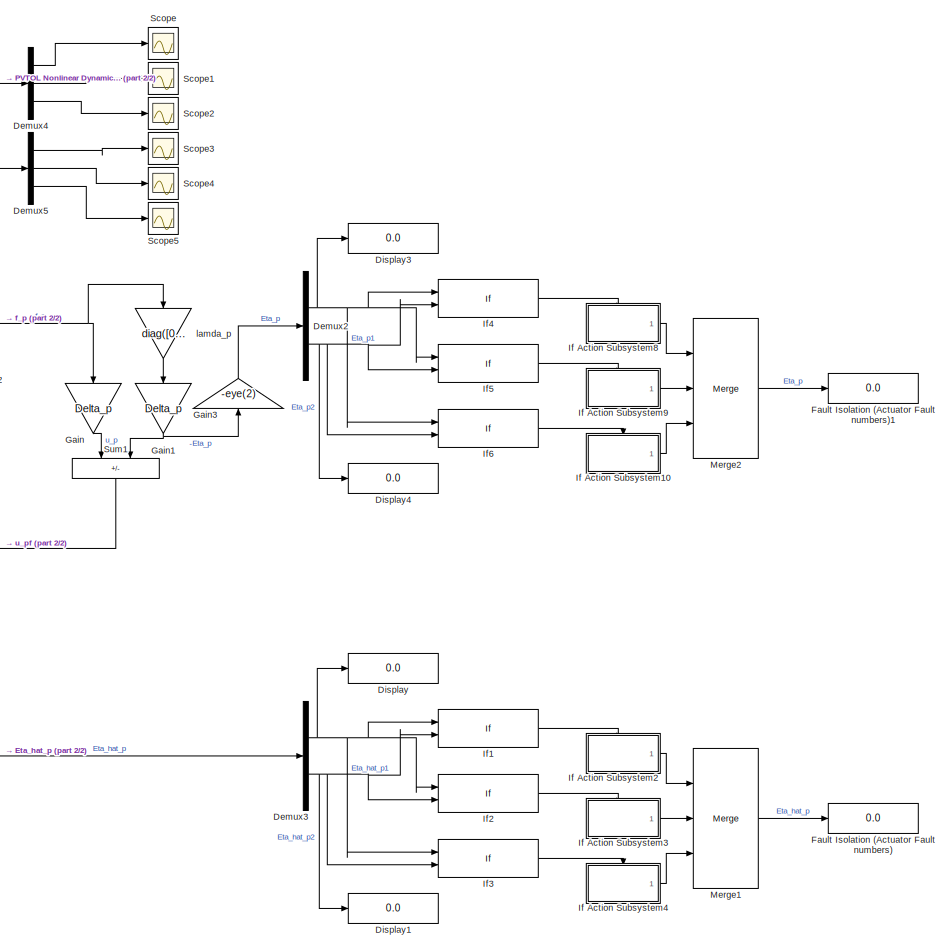
[diagram: root canvas - part 1/2, right side, full height]
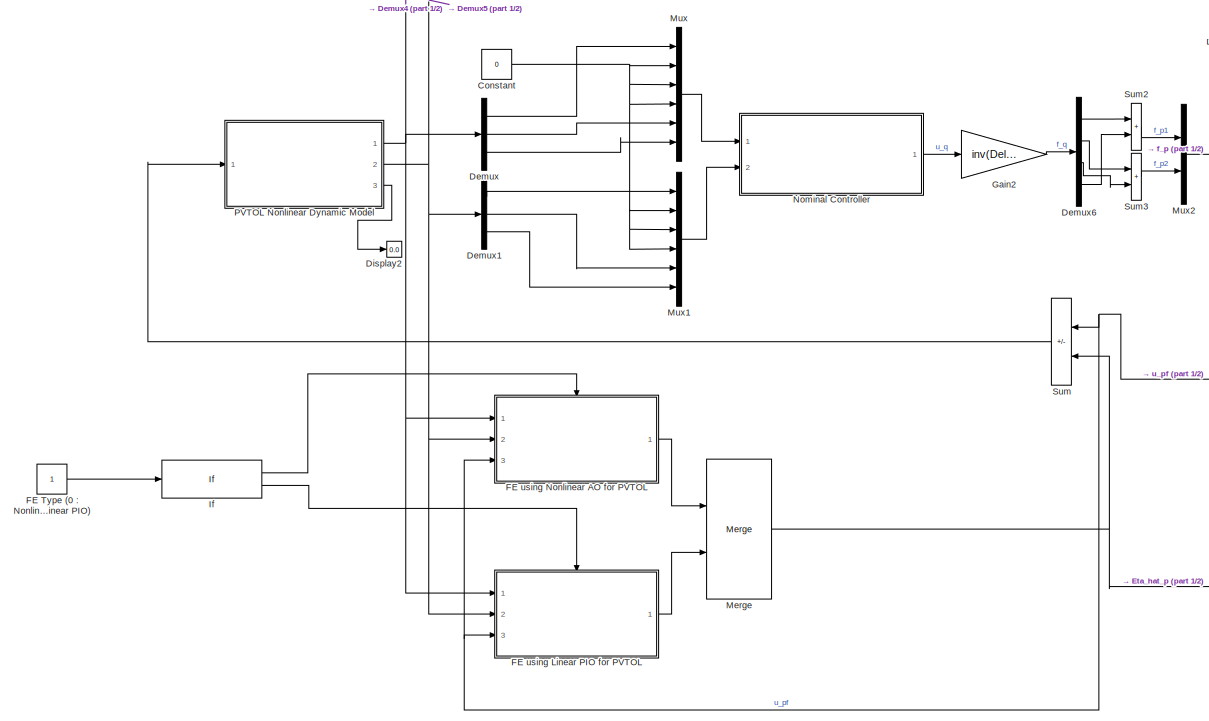
[diagram: root canvas - part 2/2, left side, full height]
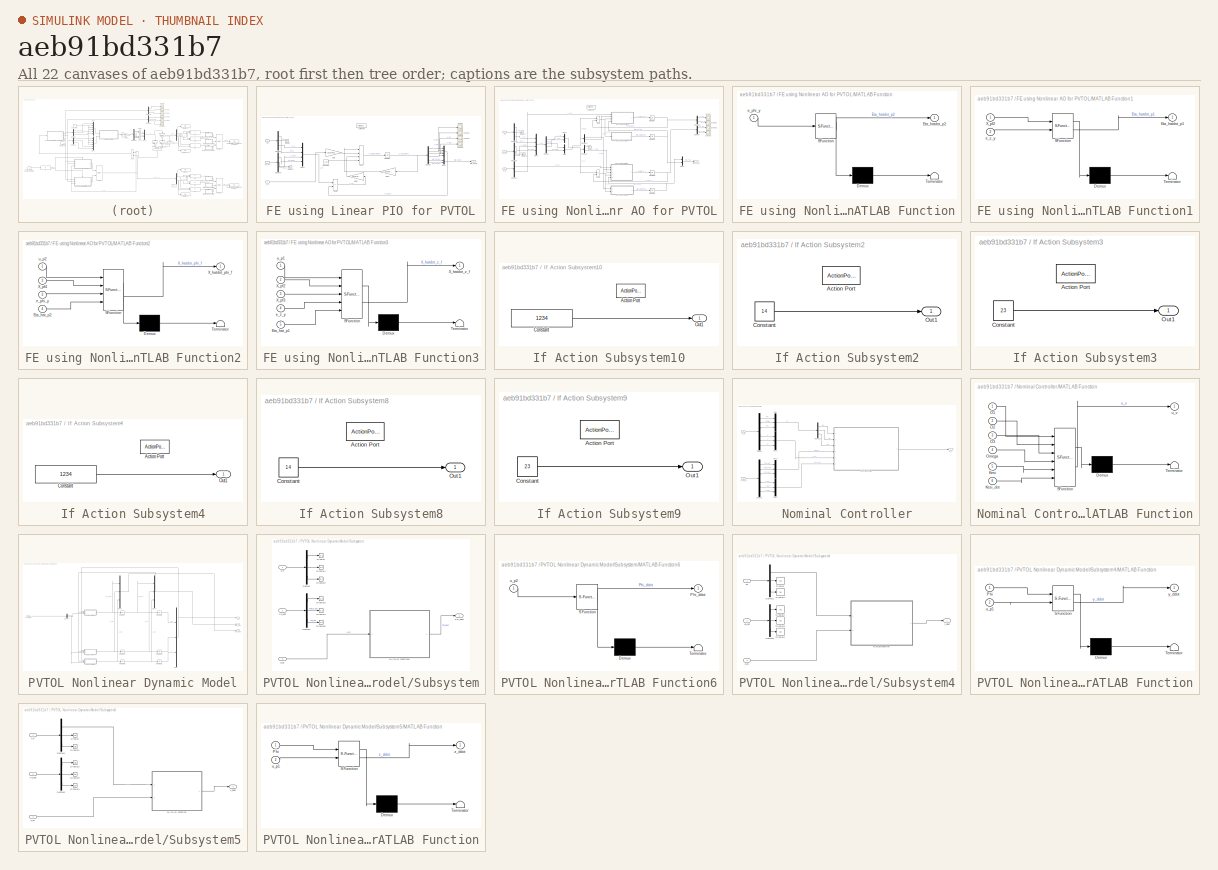
[diagram: thumbnail index - all 22 canvases of the model, root first then tree order]
MODEL slx_aeb91bd331b7
KIND model
CONFIG AbsTol = auto
CONFIG EnableMultiTasking = off
CONFIG FixedStep = auto
CONFIG MaxStep = auto
CONFIG MinStep = auto
CONFIG RelTol = 1e-3
CONFIG SampleTimeConstraint = Unconstrained
CONFIG SolverName = VariableStepAuto
CONFIG StartTime = 0.0
CONFIG StopTime = 10
BLOCK [Constant] Constant
  Value = 0
BLOCK [Demux] Demux
  Outputs = 3
  Ports = [1, 3]
BLOCK [Demux] Demux1
  Outputs = 3
  Ports = [1, 3]
BLOCK [Demux] Demux2
  Outputs = 2
  Ports = [1, 2]
BLOCK [Demux] Demux3
  Outputs = 2
  Ports = [1, 2]
BLOCK [Demux] Demux4
  Outputs = 3
  Ports = [1, 3]
BLOCK [Demux] Demux5
  Outputs = 3
  Ports = [1, 3]
BLOCK [Demux] Demux6
  Ports = [1, 4]
BLOCK [Display] Display
  Decimation = 1
  Ports = [1]
BLOCK [Display] Display1
  Decimation = 1
  Ports = [1]
BLOCK [Display] Display2
  Decimation = 1
  Ports = [1]
BLOCK [Display] Display3
  Decimation = 1
  Ports = [1]
BLOCK [Display] Display4
  Decimation = 1
  Ports = [1]
BLOCK [Constant] FE Type (0 : Nonlinear AO - 1 : Linear PIO)
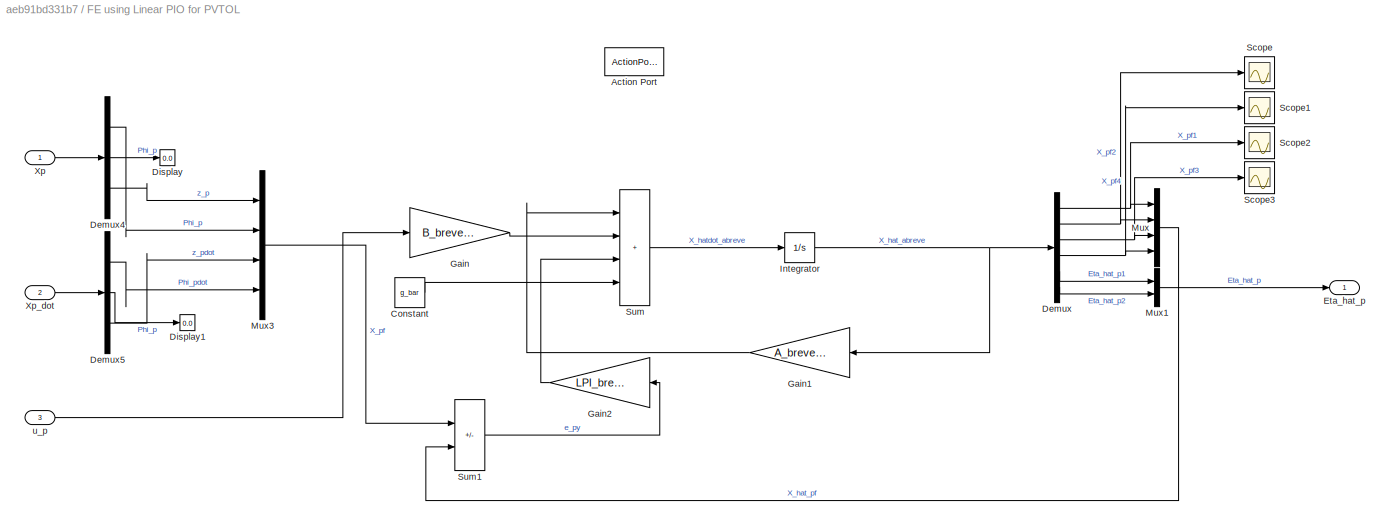
BLOCK [SubSystem] FE using Linear PIO for PVTOL
  Ports = [3, 1, 0, 0, 0, 0, 0, 1]
  RequestExecContextInheritance = off
BLOCK [ActionPort] FE using Linear PIO for PVTOL/Action Port
  ActionPortLabel = else
BLOCK [Constant] FE using Linear PIO for PVTOL/Constant
  Value = g_bar
BLOCK [Demux] FE using Linear PIO for PVTOL/Demux
  Outputs = 6
  Ports = [1, 6]
BLOCK [Demux] FE using Linear PIO for PVTOL/Demux4
  Outputs = 3
  Ports = [1, 3]
BLOCK [Demux] FE using Linear PIO for PVTOL/Demux5
  Outputs = 3
  Ports = [1, 3]
BLOCK [Display] FE using Linear PIO for PVTOL/Display
  Decimation = 1
  Ports = [1]
BLOCK [Display] FE using Linear PIO for PVTOL/Display1
  Decimation = 1
  Ports = [1]
BLOCK [Outport] FE using Linear PIO for PVTOL/Eta_hat_p
BLOCK [Gain] FE using Linear PIO for PVTOL/Gain
  Gain = B_brevebar
  Multiplication = Matrix(K*u)
BLOCK [Gain] FE using Linear PIO for PVTOL/Gain1
  Gain = A_brevebar
  Multiplication = Matrix(K*u)
  NameLocation = top
BLOCK [Gain] FE using Linear PIO for PVTOL/Gain2
  Gain = LPI_brevebar
  Multiplication = Matrix(K*u)
  NameLocation = top
BLOCK [Integrator] FE using Linear PIO for PVTOL/Integrator
  Ports = [1, 1]
BLOCK [Mux] FE using Linear PIO for PVTOL/Mux
  DisplayOption = bar
  Ports = [4, 1]
BLOCK [Mux] FE using Linear PIO for PVTOL/Mux1
  DisplayOption = bar
  Inputs = 2
  Ports = [2, 1]
BLOCK [Mux] FE using Linear PIO for PVTOL/Mux3
  DisplayOption = bar
  Ports = [4, 1]
BLOCK [Scope] FE using Linear PIO for PVTOL/Scope
  Floating = off
  NumInputPorts = 1
  Ports = [1]
  ScopeSpecificationString = Simulink.scopes.TimeScopeBlockCfg('CurrentConfiguration', extmgr.ConfigurationSet(extmgr.Configuration('Core','General UI',true),extmgr.Configuration('Core','Source UI',true),extmgr.Configuration('Sources','WiredSimulink',true,'DataLoggingVariableName','ScopeData5'),extmgr.Configuration('Visuals','Time Domain',true,'SerializedDisplays',{struct('MinYLimReal','-1.00000','MaxYLimReal','1.00000','YLab...<+1364ch>
BLOCK [Scope] FE using Linear PIO for PVTOL/Scope1
  Floating = off
  NumInputPorts = 1
  Ports = [1]
  ScopeSpecificationString = Simulink.scopes.TimeScopeBlockCfg('CurrentConfiguration', extmgr.ConfigurationSet(extmgr.Configuration('Core','General UI',true),extmgr.Configuration('Core','Source UI',true),extmgr.Configuration('Sources','WiredSimulink',true,'DataLoggingVariableName','ScopeData6'),extmgr.Configuration('Visuals','Time Domain',true,'SerializedDisplays',{struct('MinYLimReal','-1.00000','MaxYLimReal','1.00000','YLab...<+1393ch>
BLOCK [Scope] FE using Linear PIO for PVTOL/Scope2
  Floating = off
  NumInputPorts = 1
  Ports = [1]
  ScopeSpecificationString = Simulink.scopes.TimeScopeBlockCfg('CurrentConfiguration', extmgr.ConfigurationSet(extmgr.Configuration('Core','General UI',true),extmgr.Configuration('Core','Source UI',true),extmgr.Configuration('Sources','WiredSimulink',true,'DataLoggingVariableName','ScopeData7'),extmgr.Configuration('Visuals','Time Domain',true,'SerializedDisplays',{struct('MinYLimReal','-0.16533','MaxYLimReal','0.01837','YLab...<+1393ch>
BLOCK [Scope] FE using Linear PIO for PVTOL/Scope3
  Floating = off
  NumInputPorts = 1
  Ports = [1]
  ScopeSpecificationString = Simulink.scopes.TimeScopeBlockCfg('CurrentConfiguration', extmgr.ConfigurationSet(extmgr.Configuration('Core','General UI',true),extmgr.Configuration('Core','Source UI',true),extmgr.Configuration('Sources','WiredSimulink',true,'DataLoggingVariableName','ScopeData8'),extmgr.Configuration('Visuals','Time Domain',true,'SerializedDisplays',{struct('MinYLimReal','-1.03063','MaxYLimReal','0.9046','YLabe...<+1362ch>
BLOCK [Sum] FE using Linear PIO for PVTOL/Sum
  IconShape = rectangular
  Inputs = ++++
  Ports = [4, 1]
BLOCK [Sum] FE using Linear PIO for PVTOL/Sum1
  IconShape = rectangular
  Inputs = +-
  Ports = [2, 1]
BLOCK [Inport] FE using Linear PIO for PVTOL/Xp
BLOCK [Inport] FE using Linear PIO for PVTOL/Xp_dot
  Port = 2
BLOCK [Inport] FE using Linear PIO for PVTOL/u_p
  Port = 3
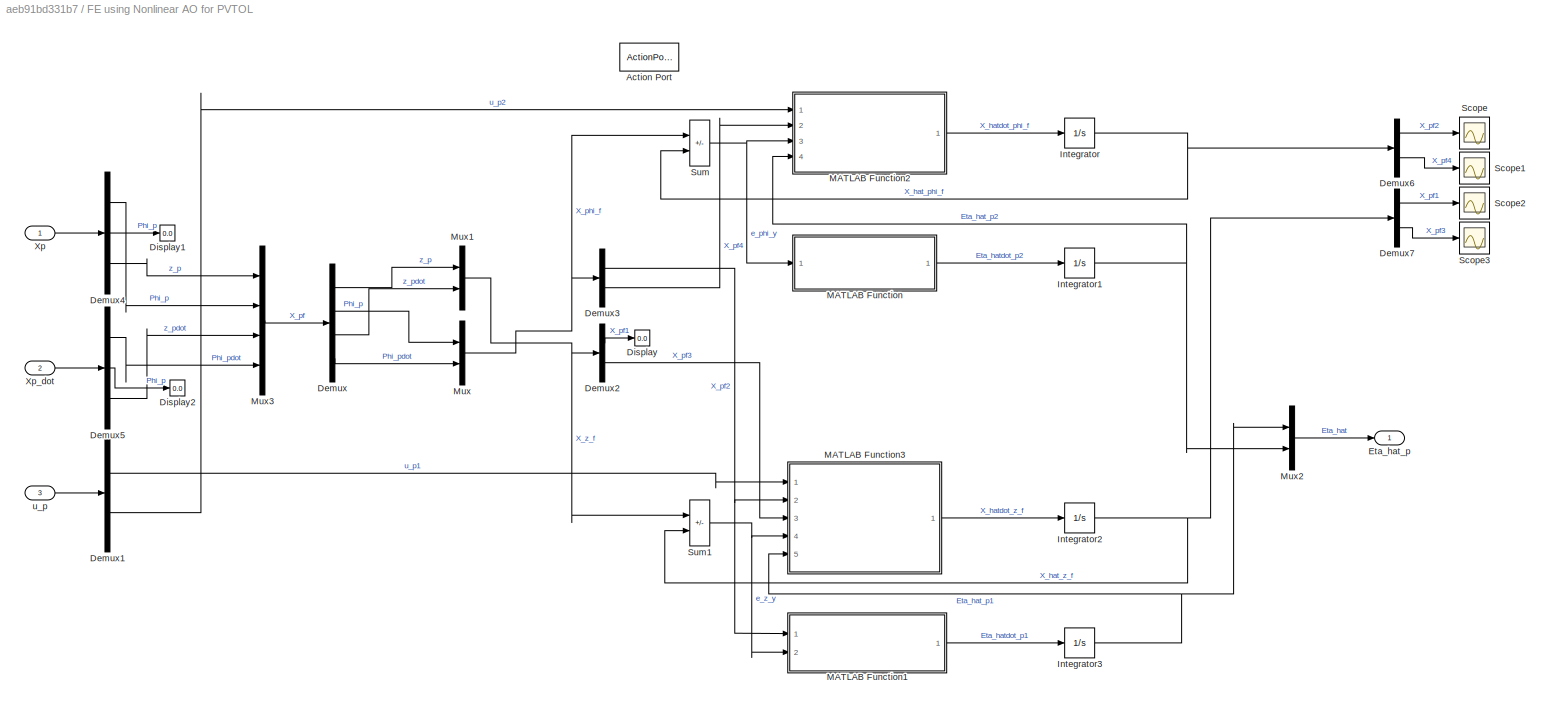
BLOCK [SubSystem] FE using Nonlinear AO for PVTOL
  Ports = [3, 1, 0, 0, 0, 0, 0, 1]
  RequestExecContextInheritance = off
BLOCK [ActionPort] FE using Nonlinear AO for PVTOL/Action Port
  ActionPortLabel = if(u1 == 0)
BLOCK [Demux] FE using Nonlinear AO for PVTOL/Demux
  Ports = [1, 4]
BLOCK [Demux] FE using Nonlinear AO for PVTOL/Demux1
  Outputs = 2
  Ports = [1, 2]
BLOCK [Demux] FE using Nonlinear AO for PVTOL/Demux2
  Outputs = 2
  Ports = [1, 2]
BLOCK [Demux] FE using Nonlinear AO for PVTOL/Demux3
  Outputs = 2
  Ports = [1, 2]
BLOCK [Demux] FE using Nonlinear AO for PVTOL/Demux4
  Outputs = 3
  Ports = [1, 3]
BLOCK [Demux] FE using Nonlinear AO for PVTOL/Demux5
  Outputs = 3
  Ports = [1, 3]
BLOCK [Demux] FE using Nonlinear AO for PVTOL/Demux6
  Outputs = 2
  Ports = [1, 2]
BLOCK [Demux] FE using Nonlinear AO for PVTOL/Demux7
  Outputs = 2
  Ports = [1, 2]
BLOCK [Display] FE using Nonlinear AO for PVTOL/Display
  Decimation = 1
  Ports = [1]
BLOCK [Display] FE using Nonlinear AO for PVTOL/Display1
  Decimation = 1
  Ports = [1]
BLOCK [Display] FE using Nonlinear AO for PVTOL/Display2
  Decimation = 1
  Ports = [1]
BLOCK [Outport] FE using Nonlinear AO for PVTOL/Eta_hat_p
BLOCK [Integrator] FE using Nonlinear AO for PVTOL/Integrator
  Ports = [1, 1]
BLOCK [Integrator] FE using Nonlinear AO for PVTOL/Integrator1
  Ports = [1, 1]
BLOCK [Integrator] FE using Nonlinear AO for PVTOL/Integrator2
  Ports = [1, 1]
BLOCK [Integrator] FE using Nonlinear AO for PVTOL/Integrator3
  Ports = [1, 1]
BLOCK [SubSystem] FE using Nonlinear AO for PVTOL/MATLAB Function
  ErrorFcn = Stateflow.Translate.translate
  PermitHierarchicalResolution = ExplicitOnly
  Ports = [1, 1]
  RequestExecContextInheritance = off
  SFBlockType = MATLAB Function
  TreatAsAtomicUnit = on
BLOCK [Demux] FE using Nonlinear AO for PVTOL/MATLAB Function/ Demux 
  Outputs = 1
  Ports = [1, 1]
BLOCK [S-Function] FE using Nonlinear AO for PVTOL/MATLAB Function/ SFunction 
  EnableBusSupport = on
  FunctionName = sf_sfun
  Parameters = Jx,Lf1,l
  PortCounts = [1 2]
  Ports = [1, 2]
  SFcnIsStateOwnerBlock = off
  SFunctionDeploymentMode = off
  Tag = Stateflow S-Function 8
BLOCK [Terminator] FE using Nonlinear AO for PVTOL/MATLAB Function/ Terminator 
BLOCK [Outport] FE using Nonlinear AO for PVTOL/MATLAB Function/Eta_hatdot_p2
BLOCK [Inport] FE using Nonlinear AO for PVTOL/MATLAB Function/e_phi_y
BLOCK [SubSystem] FE using Nonlinear AO for PVTOL/MATLAB Function1
  ErrorFcn = Stateflow.Translate.translate
  PermitHierarchicalResolution = ExplicitOnly
  Ports = [2, 1]
  RequestExecContextInheritance = off
  SFBlockType = MATLAB Function
  TreatAsAtomicUnit = on
BLOCK [Demux] FE using Nonlinear AO for PVTOL/MATLAB Function1/ Demux 
  Outputs = 1
  Ports = [1, 1]
BLOCK [S-Function] FE using Nonlinear AO for PVTOL/MATLAB Function1/ SFunction 
  EnableBusSupport = on
  FunctionName = sf_sfun
  Parameters = Lf2,m
  PortCounts = [2 2]
  Ports = [2, 2]
  SFcnIsStateOwnerBlock = off
  SFunctionDeploymentMode = off
  Tag = Stateflow S-Function 9
BLOCK [Terminator] FE using Nonlinear AO for PVTOL/MATLAB Function1/ Terminator 
BLOCK [Outport] FE using Nonlinear AO for PVTOL/MATLAB Function1/Eta_hatdot_p1
BLOCK [Inport] FE using Nonlinear AO for PVTOL/MATLAB Function1/X_pf2
BLOCK [Inport] FE using Nonlinear AO for PVTOL/MATLAB Function1/e_z_y
  Port = 2
BLOCK [SubSystem] FE using Nonlinear AO for PVTOL/MATLAB Function2
  ErrorFcn = Stateflow.Translate.translate
  PermitHierarchicalResolution = ExplicitOnly
  Ports = [4, 1]
  RequestExecContextInheritance = off
  SFBlockType = MATLAB Function
  TreatAsAtomicUnit = on
BLOCK [Demux] FE using Nonlinear AO for PVTOL/MATLAB Function2/ Demux 
  Outputs = 1
  Ports = [1, 1]
BLOCK [S-Function] FE using Nonlinear AO for PVTOL/MATLAB Function2/ SFunction 
  EnableBusSupport = on
  FunctionName = sf_sfun
  Parameters = Jx,Ly1,l
  PortCounts = [4 2]
  Ports = [4, 2]
  SFcnIsStateOwnerBlock = off
  SFunctionDeploymentMode = off
  Tag = Stateflow S-Function 10
BLOCK [Terminator] FE using Nonlinear AO for PVTOL/MATLAB Function2/ Terminator 
BLOCK [Inport] FE using Nonlinear AO for PVTOL/MATLAB Function2/Eta_hat_p2
  Port = 4
BLOCK [Outport] FE using Nonlinear AO for PVTOL/MATLAB Function2/X_hatdot_phi_f
BLOCK [Inport] FE using Nonlinear AO for PVTOL/MATLAB Function2/X_pf4
  Port = 2
BLOCK [Inport] FE using Nonlinear AO for PVTOL/MATLAB Function2/e_phi_y
  Port = 3
BLOCK [Inport] FE using Nonlinear AO for PVTOL/MATLAB Function2/u_p2
BLOCK [SubSystem] FE using Nonlinear AO for PVTOL/MATLAB Function3
  ErrorFcn = Stateflow.Translate.translate
  PermitHierarchicalResolution = ExplicitOnly
  Ports = [5, 1]
  RequestExecContextInheritance = off
  SFBlockType = MATLAB Function
  TreatAsAtomicUnit = on
BLOCK [Demux] FE using Nonlinear AO for PVTOL/MATLAB Function3/ Demux 
  Outputs = 1
  Ports = [1, 1]
BLOCK [S-Function] FE using Nonlinear AO for PVTOL/MATLAB Function3/ SFunction 
  EnableBusSupport = on
  FunctionName = sf_sfun
  Parameters = Ly2,g,m
  PortCounts = [5 2]
  Ports = [5, 2]
  SFcnIsStateOwnerBlock = off
  SFunctionDeploymentMode = off
  Tag = Stateflow S-Function 13
BLOCK [Terminator] FE using Nonlinear AO for PVTOL/MATLAB Function3/ Terminator 
BLOCK [Inport] FE using Nonlinear AO for PVTOL/MATLAB Function3/Eta_hat_p1
  Port = 5
BLOCK [Outport] FE using Nonlinear AO for PVTOL/MATLAB Function3/X_hatdot_z_f
BLOCK [Inport] FE using Nonlinear AO for PVTOL/MATLAB Function3/X_pf2
  Port = 2
BLOCK [Inport] FE using Nonlinear AO for PVTOL/MATLAB Function3/X_pf3
  Port = 3
BLOCK [Inport] FE using Nonlinear AO for PVTOL/MATLAB Function3/e_z_y
  Port = 4
BLOCK [Inport] FE using Nonlinear AO for PVTOL/MATLAB Function3/u_p1
BLOCK [Mux] FE using Nonlinear AO for PVTOL/Mux
  DisplayOption = bar
  Inputs = 2
  Ports = [2, 1]
BLOCK [Mux] FE using Nonlinear AO for PVTOL/Mux1
  DisplayOption = bar
  Inputs = 2
  Ports = [2, 1]
BLOCK [Mux] FE using Nonlinear AO for PVTOL/Mux2
  DisplayOption = bar
  Inputs = 2
  Ports = [2, 1]
BLOCK [Mux] FE using Nonlinear AO for PVTOL/Mux3
  DisplayOption = bar
  Ports = [4, 1]
BLOCK [Scope] FE using Nonlinear AO for PVTOL/Scope
  Floating = off
  NumInputPorts = 1
  Ports = [1]
  ScopeSpecificationString = Simulink.scopes.TimeScopeBlockCfg('CurrentConfiguration', extmgr.ConfigurationSet(extmgr.Configuration('Core','General UI',true),extmgr.Configuration('Core','Source UI',true),extmgr.Configuration('Sources','WiredSimulink',true,'DataLoggingVariableName','ScopeData1'),extmgr.Configuration('Visuals','Time Domain',true,'SerializedDisplays',{struct('MinYLimReal','-1.00000','MaxYLimReal','1.00000','YLab...<+1364ch>
BLOCK [Scope] FE using Nonlinear AO for PVTOL/Scope1
  Floating = off
  NumInputPorts = 1
  Ports = [1]
  ScopeSpecificationString = Simulink.scopes.TimeScopeBlockCfg('CurrentConfiguration', extmgr.ConfigurationSet(extmgr.Configuration('Core','General UI',true),extmgr.Configuration('Core','Source UI',true),extmgr.Configuration('Sources','WiredSimulink',true,'DataLoggingVariableName','ScopeData2'),extmgr.Configuration('Visuals','Time Domain',true,'SerializedDisplays',{struct('MinYLimReal','-1.00000','MaxYLimReal','1.00000','YLab...<+1393ch>
BLOCK [Scope] FE using Nonlinear AO for PVTOL/Scope2
  Floating = off
  NumInputPorts = 1
  Ports = [1]
  ScopeSpecificationString = Simulink.scopes.TimeScopeBlockCfg('CurrentConfiguration', extmgr.ConfigurationSet(extmgr.Configuration('Core','General UI',true),extmgr.Configuration('Core','Source UI',true),extmgr.Configuration('Sources','WiredSimulink',true,'DataLoggingVariableName','ScopeData3'),extmgr.Configuration('Visuals','Time Domain',true,'SerializedDisplays',{struct('MinYLimReal','-10005168995660824703561607634066728250...<+2087ch>
BLOCK [Scope] FE using Nonlinear AO for PVTOL/Scope3
  Floating = off
  NumInputPorts = 1
  Ports = [1]
  ScopeSpecificationString = Simulink.scopes.TimeScopeBlockCfg('CurrentConfiguration', extmgr.ConfigurationSet(extmgr.Configuration('Core','General UI',true),extmgr.Configuration('Core','Source UI',true),extmgr.Configuration('Sources','WiredSimulink',true,'DataLoggingVariableName','ScopeData4'),extmgr.Configuration('Visuals','Time Domain',true,'SerializedDisplays',{struct('MinYLimReal','-23915333908916219312646091552041973709...<+2072ch>
BLOCK [Sum] FE using Nonlinear AO for PVTOL/Sum
  IconShape = rectangular
  Inputs = |+-
  Ports = [2, 1]
BLOCK [Sum] FE using Nonlinear AO for PVTOL/Sum1
  IconShape = rectangular
  Inputs = |+-
  Ports = [2, 1]
BLOCK [Inport] FE using Nonlinear AO for PVTOL/Xp
BLOCK [Inport] FE using Nonlinear AO for PVTOL/Xp_dot
  Port = 2
BLOCK [Inport] FE using Nonlinear AO for PVTOL/u_p
  Port = 3
BLOCK [Display] Fault Isolation (Actuator Fault numbers)
  Decimation = 1
  Ports = [1]
BLOCK [Display] Fault Isolation (Actuator Fault numbers)1
  Decimation = 1
  Ports = [1]
BLOCK [Gain] Gain
  Gain = Delta_p
  Multiplication = Matrix(K*u)
  NameLocation = left
BLOCK [Gain] Gain1
  Gain = Delta_p
  Multiplication = Matrix(K*u)
  NameLocation = left
BLOCK [Gain] Gain2
  Gain = inv(Delta_q)
  Multiplication = Matrix(K*u)
BLOCK [Gain] Gain3
  Gain = -eye(2)
  Multiplication = Matrix(K*u)
  NameLocation = right
BLOCK [If] If
  IfExpression = u1 == 0
  Ports = [1, 2]
BLOCK [SubSystem] If Action Subsystem10
  Ports = [0, 1, 0, 0, 0, 0, 0, 1]
  RequestExecContextInheritance = off
  TreatAsAtomicUnit = on
BLOCK [ActionPort] If Action Subsystem10/Action Port
  ActionPortLabel = if(u1 >0)
BLOCK [Constant] If Action Subsystem10/Constant
  Value = 1234
BLOCK [Outport] If Action Subsystem10/Out1
BLOCK [SubSystem] If Action Subsystem2
  Ports = [0, 1, 0, 0, 0, 0, 0, 1]
  RequestExecContextInheritance = off
  TreatAsAtomicUnit = on
BLOCK [ActionPort] If Action Subsystem2/Action Port
  ActionPortLabel = if(u1 < 0 & u2<0)
BLOCK [Constant] If Action Subsystem2/Constant
  Value = 14
BLOCK [Outport] If Action Subsystem2/Out1
BLOCK [SubSystem] If Action Subsystem3
  Ports = [0, 1, 0, 0, 0, 0, 0, 1]
  RequestExecContextInheritance = off
  TreatAsAtomicUnit = on
BLOCK [ActionPort] If Action Subsystem3/Action Port
  ActionPortLabel = if(u1 <0 & u2>0)
BLOCK [Constant] If Action Subsystem3/Constant
  Value = 23
BLOCK [Outport] If Action Subsystem3/Out1
BLOCK [SubSystem] If Action Subsystem4
  Ports = [0, 1, 0, 0, 0, 0, 0, 1]
  RequestExecContextInheritance = off
  TreatAsAtomicUnit = on
BLOCK [ActionPort] If Action Subsystem4/Action Port
  ActionPortLabel = if(u1 >0 )
BLOCK [Constant] If Action Subsystem4/Constant
  Value = 1234
BLOCK [Outport] If Action Subsystem4/Out1
BLOCK [SubSystem] If Action Subsystem8
  Ports = [0, 1, 0, 0, 0, 0, 0, 1]
  RequestExecContextInheritance = off
  TreatAsAtomicUnit = on
BLOCK [ActionPort] If Action Subsystem8/Action Port
  ActionPortLabel = if(u1 < 0 & u2<0)
BLOCK [Constant] If Action Subsystem8/Constant
  Value = 14
BLOCK [Outport] If Action Subsystem8/Out1
BLOCK [SubSystem] If Action Subsystem9
  Ports = [0, 1, 0, 0, 0, 0, 0, 1]
  RequestExecContextInheritance = off
  TreatAsAtomicUnit = on
BLOCK [ActionPort] If Action Subsystem9/Action Port
  ActionPortLabel = if(u1 <0 & u2>0)
BLOCK [Constant] If Action Subsystem9/Constant
  Value = 23
BLOCK [Outport] If Action Subsystem9/Out1
BLOCK [If] If1
  IfExpression = u1 < 0 & u2<0
  NumInputs = 2
  Ports = [2, 1]
  ShowElse = off
BLOCK [If] If2
  IfExpression = u1 <0 & u2>0
  NumInputs = 2
  Ports = [2, 1]
  ShowElse = off
BLOCK [If] If3
  IfExpression = u1 >0
  NumInputs = 2
  Ports = [2, 1]
  ShowElse = off
BLOCK [If] If4
  IfExpression = u1 < 0 & u2<0
  NumInputs = 2
  Ports = [2, 1]
  ShowElse = off
BLOCK [If] If5
  IfExpression = u1 <0 & u2>0
  NumInputs = 2
  Ports = [2, 1]
  ShowElse = off
BLOCK [If] If6
  IfExpression = u1 >0
  NumInputs = 2
  Ports = [2, 1]
  ShowElse = off
BLOCK [Merge] Merge
  Ports = [2, 1]
BLOCK [Merge] Merge1
  Inputs = 3
  Ports = [3, 1]
BLOCK [Merge] Merge2
  Inputs = 3
  Ports = [3, 1]
BLOCK [Mux] Mux
  DisplayOption = bar
  Inputs = 6
  Ports = [6, 1]
BLOCK [Mux] Mux1
  DisplayOption = bar
  Inputs = 6
  Ports = [6, 1]
BLOCK [Mux] Mux2
  DisplayOption = bar
  Inputs = 2
  Ports = [2, 1]
BLOCK [SubSystem] Nominal Controller
  Ports = [2, 1]
  RequestExecContextInheritance = off
BLOCK [Demux] Nominal Controller/Demux
  Outputs = 6
  Ports = [1, 6]
BLOCK [Demux] Nominal Controller/Demux1
  Outputs = 6
  Ports = [1, 6]
BLOCK [Demux] Nominal Controller/Demux2
  Outputs = 3
  Ports = [1, 3]
BLOCK [SubSystem] Nominal Controller/MATLAB Function
  ErrorFcn = Stateflow.Translate.translate
  PermitHierarchicalResolution = ExplicitOnly
  Ports = [6, 1]
  RequestExecContextInheritance = off
  SFBlockType = MATLAB Function
  TreatAsAtomicUnit = on
BLOCK [Demux] Nominal Controller/MATLAB Function/ Demux 
  Outputs = 1
  Ports = [1, 1]
BLOCK [S-Function] Nominal Controller/MATLAB Function/ SFunction 
  EnableBusSupport = on
  FunctionName = sf_sfun
  Parameters = K_D_kesi,K_D_omega,K_P_kesi,K_P_omega,O_d,Omega_d,kesi_d,kesi_dot_d
  PortCounts = [6 2]
  Ports = [6, 2]
  SFcnIsStateOwnerBlock = off
  SFunctionDeploymentMode = off
  Tag = Stateflow S-Function 16
BLOCK [Terminator] Nominal Controller/MATLAB Function/ Terminator 
BLOCK [Inport] Nominal Controller/MATLAB Function/Kesi
  Port = 5
BLOCK [Inport] Nominal Controller/MATLAB Function/Kesi_dot
  Port = 6
BLOCK [Inport] Nominal Controller/MATLAB Function/O1
BLOCK [Inport] Nominal Controller/MATLAB Function/O2
  Port = 2
BLOCK [Inport] Nominal Controller/MATLAB Function/O3
  Port = 3
BLOCK [Inport] Nominal Controller/MATLAB Function/Omega
  Port = 4
BLOCK [Outport] Nominal Controller/MATLAB Function/u_v
BLOCK [Mux] Nominal Controller/Mux
  DisplayOption = bar
  Inputs = 3
  Ports = [3, 1]
BLOCK [Mux] Nominal Controller/Mux1
  DisplayOption = bar
  Inputs = 3
  Ports = [3, 1]
BLOCK [Mux] Nominal Controller/Mux2
  DisplayOption = bar
  Inputs = 3
  Ports = [3, 1]
BLOCK [Mux] Nominal Controller/Mux3
  DisplayOption = bar
  Inputs = 3
  Ports = [3, 1]
BLOCK [Inport] Nominal Controller/X_dot_q
  Port = 2
BLOCK [Inport] Nominal Controller/X_q
BLOCK [Outport] Nominal Controller/u_v
BLOCK [SubSystem] PVTOL Nonlinear Dynamic Model
  Ports = [1, 3]
  RequestExecContextInheritance = off
BLOCK [Demux] PVTOL Nonlinear Dynamic Model/Demux
  Outputs = 2
  Ports = [1, 2]
BLOCK [Integrator] PVTOL Nonlinear Dynamic Model/Integrator
  InitialCondition = Phi_dot_init
  Ports = [1, 1]
BLOCK [Integrator] PVTOL Nonlinear Dynamic Model/Integrator10
  InitialCondition = y_init
  Ports = [1, 1]
BLOCK [Integrator] PVTOL Nonlinear Dynamic Model/Integrator11
  InitialCondition = z_init
  Ports = [1, 1]
BLOCK [Integrator] PVTOL Nonlinear Dynamic Model/Integrator4
  InitialCondition = y_dot_init
  Ports = [1, 1]
BLOCK [Integrator] PVTOL Nonlinear Dynamic Model/Integrator5
  InitialCondition = z_dot_init
  Ports = [1, 1]
BLOCK [Integrator] PVTOL Nonlinear Dynamic Model/Integrator6
  InitialCondition = Phi_init
  Ports = [1, 1]
BLOCK [Mux] PVTOL Nonlinear Dynamic Model/Mux1
  DisplayOption = bar
  Inputs = 3
  Ports = [3, 1]
BLOCK [Mux] PVTOL Nonlinear Dynamic Model/Mux2
  DisplayOption = bar
  Inputs = 3
  Ports = [3, 1]
BLOCK [Mux] PVTOL Nonlinear Dynamic Model/Mux3
  DisplayOption = bar
  Inputs = 3
  Ports = [3, 1]
BLOCK [SubSystem] PVTOL Nonlinear Dynamic Model/Subsystem
  Ports = [3, 1]
  RequestExecContextInheritance = off
BLOCK [Demux] PVTOL Nonlinear Dynamic Model/Subsystem/Demux
  Outputs = 3
  Ports = [1, 3]
BLOCK [Demux] PVTOL Nonlinear Dynamic Model/Subsystem/Demux1
  Outputs = 3
  Ports = [1, 3]
BLOCK [Display] PVTOL Nonlinear Dynamic Model/Subsystem/Display
  Decimation = 1
  Ports = [1]
BLOCK [Display] PVTOL Nonlinear Dynamic Model/Subsystem/Display1
  Decimation = 1
  Ports = [1]
BLOCK [Display] PVTOL Nonlinear Dynamic Model/Subsystem/Display2
  Decimation = 1
  Ports = [1]
BLOCK [Display] PVTOL Nonlinear Dynamic Model/Subsystem/Display3
  Decimation = 1
  Ports = [1]
BLOCK [Display] PVTOL Nonlinear Dynamic Model/Subsystem/Display4
  Decimation = 1
  Ports = [1]
BLOCK [Display] PVTOL Nonlinear Dynamic Model/Subsystem/Display5
  Decimation = 1
  Ports = [1]
BLOCK [SubSystem] PVTOL Nonlinear Dynamic Model/Subsystem/MATLAB Function6
  ErrorFcn = Stateflow.Translate.translate
  PermitHierarchicalResolution = ExplicitOnly
  Ports = [1, 1]
  RequestExecContextInheritance = off
  SFBlockType = MATLAB Function
  TreatAsAtomicUnit = on
BLOCK [Demux] PVTOL Nonlinear Dynamic Model/Subsystem/MATLAB Function6/ Demux 
  Outputs = 1
  Ports = [1, 1]
BLOCK [S-Function] PVTOL Nonlinear Dynamic Model/Subsystem/MATLAB Function6/ SFunction 
  EnableBusSupport = on
  FunctionName = sf_sfun
  Parameters = Jx,l
  PortCounts = [1 2]
  Ports = [1, 2]
  SFcnIsStateOwnerBlock = off
  SFunctionDeploymentMode = off
  Tag = Stateflow S-Function 7
BLOCK [Terminator] PVTOL Nonlinear Dynamic Model/Subsystem/MATLAB Function6/ Terminator 
BLOCK [Outport] PVTOL Nonlinear Dynamic Model/Subsystem/MATLAB Function6/Phi_ddot
BLOCK [Inport] PVTOL Nonlinear Dynamic Model/Subsystem/MATLAB Function6/u_p2
BLOCK [Outport] PVTOL Nonlinear Dynamic Model/Subsystem/Phi_ddot
BLOCK [Inport] PVTOL Nonlinear Dynamic Model/Subsystem/Xp
BLOCK [Inport] PVTOL Nonlinear Dynamic Model/Subsystem/Xp_dot
  Port = 2
BLOCK [Inport] PVTOL Nonlinear Dynamic Model/Subsystem/u_p2
  Port = 3
BLOCK [SubSystem] PVTOL Nonlinear Dynamic Model/Subsystem4
  Ports = [3, 1]
  RequestExecContextInheritance = off
BLOCK [Demux] PVTOL Nonlinear Dynamic Model/Subsystem4/Demux1
  Outputs = 3
  Ports = [1, 3]
BLOCK [Demux] PVTOL Nonlinear Dynamic Model/Subsystem4/Demux2
  Outputs = 3
  Ports = [1, 3]
BLOCK [Display] PVTOL Nonlinear Dynamic Model/Subsystem4/Display
  Decimation = 1
  Ports = [1]
BLOCK [Display] PVTOL Nonlinear Dynamic Model/Subsystem4/Display1
  Decimation = 1
  Ports = [1]
BLOCK [Display] PVTOL Nonlinear Dynamic Model/Subsystem4/Display2
  Decimation = 1
  Ports = [1]
BLOCK [Display] PVTOL Nonlinear Dynamic Model/Subsystem4/Display3
  Decimation = 1
  Ports = [1]
BLOCK [Display] PVTOL Nonlinear Dynamic Model/Subsystem4/Display4
  Decimation = 1
  Ports = [1]
BLOCK [SubSystem] PVTOL Nonlinear Dynamic Model/Subsystem4/MATLAB Function
  ErrorFcn = Stateflow.Translate.translate
  PermitHierarchicalResolution = ExplicitOnly
  Ports = [2, 1]
  RequestExecContextInheritance = off
  SFBlockType = MATLAB Function
  TreatAsAtomicUnit = on
BLOCK [Demux] PVTOL Nonlinear Dynamic Model/Subsystem4/MATLAB Function/ Demux 
  Outputs = 1
  Ports = [1, 1]
BLOCK [S-Function] PVTOL Nonlinear Dynamic Model/Subsystem4/MATLAB Function/ SFunction 
  EnableBusSupport = on
  FunctionName = sf_sfun
  Parameters = m
  PortCounts = [2 2]
  Ports = [2, 2]
  SFcnIsStateOwnerBlock = off
  SFunctionDeploymentMode = off
  Tag = Stateflow S-Function 11
BLOCK [Terminator] PVTOL Nonlinear Dynamic Model/Subsystem4/MATLAB Function/ Terminator 
BLOCK [Inport] PVTOL Nonlinear Dynamic Model/Subsystem4/MATLAB Function/Phi
BLOCK [Inport] PVTOL Nonlinear Dynamic Model/Subsystem4/MATLAB Function/u_p1
  Port = 2
BLOCK [Outport] PVTOL Nonlinear Dynamic Model/Subsystem4/MATLAB Function/y_ddot
BLOCK [Inport] PVTOL Nonlinear Dynamic Model/Subsystem4/Xp
BLOCK [Inport] PVTOL Nonlinear Dynamic Model/Subsystem4/Xp_dot
  Port = 2
BLOCK [Inport] PVTOL Nonlinear Dynamic Model/Subsystem4/u_p1
  Port = 3
BLOCK [Outport] PVTOL Nonlinear Dynamic Model/Subsystem4/y_ddot
BLOCK [SubSystem] PVTOL Nonlinear Dynamic Model/Subsystem5
  Ports = [3, 1]
  RequestExecContextInheritance = off
BLOCK [Demux] PVTOL Nonlinear Dynamic Model/Subsystem5/Demux1
  Outputs = 3
  Ports = [1, 3]
BLOCK [Demux] PVTOL Nonlinear Dynamic Model/Subsystem5/Demux2
  Outputs = 3
  Ports = [1, 3]
BLOCK [Display] PVTOL Nonlinear Dynamic Model/Subsystem5/Display
  Decimation = 1
  Ports = [1]
BLOCK [Display] PVTOL Nonlinear Dynamic Model/Subsystem5/Display1
  Decimation = 1
  Ports = [1]
BLOCK [Display] PVTOL Nonlinear Dynamic Model/Subsystem5/Display2
  Decimation = 1
  Ports = [1]
BLOCK [Display] PVTOL Nonlinear Dynamic Model/Subsystem5/Display3
  Decimation = 1
  Ports = [1]
BLOCK [Display] PVTOL Nonlinear Dynamic Model/Subsystem5/Display4
  Decimation = 1
  Ports = [1]
BLOCK [SubSystem] PVTOL Nonlinear Dynamic Model/Subsystem5/MATLAB Function
  ErrorFcn = Stateflow.Translate.translate
  PermitHierarchicalResolution = ExplicitOnly
  Ports = [2, 1]
  RequestExecContextInheritance = off
  SFBlockType = MATLAB Function
  TreatAsAtomicUnit = on
BLOCK [Demux] PVTOL Nonlinear Dynamic Model/Subsystem5/MATLAB Function/ Demux 
  Outputs = 1
  Ports = [1, 1]
BLOCK [S-Function] PVTOL Nonlinear Dynamic Model/Subsystem5/MATLAB Function/ SFunction 
  EnableBusSupport = on
  FunctionName = sf_sfun
  Parameters = g,m
  PortCounts = [2 2]
  Ports = [2, 2]
  SFcnIsStateOwnerBlock = off
  SFunctionDeploymentMode = off
  Tag = Stateflow S-Function 12
BLOCK [Terminator] PVTOL Nonlinear Dynamic Model/Subsystem5/MATLAB Function/ Terminator 
BLOCK [Inport] PVTOL Nonlinear Dynamic Model/Subsystem5/MATLAB Function/Phi
BLOCK [Inport] PVTOL Nonlinear Dynamic Model/Subsystem5/MATLAB Function/u_p1
  Port = 2
BLOCK [Outport] PVTOL Nonlinear Dynamic Model/Subsystem5/MATLAB Function/z_ddot
BLOCK [Inport] PVTOL Nonlinear Dynamic Model/Subsystem5/Xp
BLOCK [Inport] PVTOL Nonlinear Dynamic Model/Subsystem5/Xp_dot
  Port = 2
BLOCK [Inport] PVTOL Nonlinear Dynamic Model/Subsystem5/u_p1
  Port = 3
BLOCK [Outport] PVTOL Nonlinear Dynamic Model/Subsystem5/z_ddot
BLOCK [Outport] PVTOL Nonlinear Dynamic Model/Xp
BLOCK [Outport] PVTOL Nonlinear Dynamic Model/Xp_ddot
  Port = 3
BLOCK [Outport] PVTOL Nonlinear Dynamic Model/Xp_dot
  Port = 2
BLOCK [Inport] PVTOL Nonlinear Dynamic Model/u_p or f_p
BLOCK [Scope] Scope
  Floating = off
  NumInputPorts = 1
  Ports = [1]
  ScopeSpecificationString = Simulink.scopes.TimeScopeBlockCfg('CurrentConfiguration', extmgr.ConfigurationSet(extmgr.Configuration('Core','General UI',true),extmgr.Configuration('Core','Source UI',true),extmgr.Configuration('Sources','WiredSimulink',true),extmgr.Configuration('Visuals','Time Domain',true,'SerializedDisplays',{struct('MinYLimReal','-1.00000','MaxYLimReal','1.00000','YLabelReal','','MinYLimMag','0.00000','MaxY...<+1328ch>
BLOCK [Scope] Scope1
  Floating = off
  NumInputPorts = 1
  Ports = [1]
  ScopeSpecificationString = Simulink.scopes.TimeScopeBlockCfg('CurrentConfiguration', extmgr.ConfigurationSet(extmgr.Configuration('Core','General UI',true),extmgr.Configuration('Core','Source UI',true),extmgr.Configuration('Sources','WiredSimulink',true,'DataLoggingVariableName','ScopeData1'),extmgr.Configuration('Visuals','Time Domain',true,'SerializedDisplays',{struct('MinYLimReal','-1.00000','MaxYLimReal','1.00000','YLab...<+1396ch>
BLOCK [Scope] Scope2
  Floating = off
  NumInputPorts = 1
  Ports = [1]
  ScopeSpecificationString = Simulink.scopes.TimeScopeBlockCfg('CurrentConfiguration', extmgr.ConfigurationSet(extmgr.Configuration('Core','General UI',true),extmgr.Configuration('Core','Source UI',true),extmgr.Configuration('Sources','WiredSimulink',true,'DataLoggingVariableName','ScopeData2'),extmgr.Configuration('Visuals','Time Domain',true,'SerializedDisplays',{struct('MinYLimReal','-0.16533','MaxYLimReal','0.01837','YLab...<+1396ch>
BLOCK [Scope] Scope3
  Floating = off
  NumInputPorts = 1
  Ports = [1]
  ScopeSpecificationString = Simulink.scopes.TimeScopeBlockCfg('CurrentConfiguration', extmgr.ConfigurationSet(extmgr.Configuration('Core','General UI',true),extmgr.Configuration('Core','Source UI',true),extmgr.Configuration('Sources','WiredSimulink',true,'DataLoggingVariableName','ScopeData3'),extmgr.Configuration('Visuals','Time Domain',true,'SerializedDisplays',{struct('MinYLimReal','-1.00000','MaxYLimReal','1.00000','YLab...<+1367ch>
BLOCK [Scope] Scope4
  Floating = off
  NumInputPorts = 1
  Ports = [1]
  ScopeSpecificationString = Simulink.scopes.TimeScopeBlockCfg('CurrentConfiguration', extmgr.ConfigurationSet(extmgr.Configuration('Core','General UI',true),extmgr.Configuration('Core','Source UI',true),extmgr.Configuration('Sources','WiredSimulink',true,'DataLoggingVariableName','ScopeData4'),extmgr.Configuration('Visuals','Time Domain',true,'SerializedDisplays',{struct('MinYLimReal','-1.00000','MaxYLimReal','1.00000','YLab...<+1367ch>
BLOCK [Scope] Scope5
  Floating = off
  NumInputPorts = 1
  Ports = [1]
  ScopeSpecificationString = Simulink.scopes.TimeScopeBlockCfg('CurrentConfiguration', extmgr.ConfigurationSet(extmgr.Configuration('Core','General UI',true),extmgr.Configuration('Core','Source UI',true),extmgr.Configuration('Sources','WiredSimulink',true,'DataLoggingVariableName','ScopeData5'),extmgr.Configuration('Visuals','Time Domain',true,'SerializedDisplays',{struct('MinYLimReal','-0.80053','MaxYLimReal','0.71108','YLab...<+1386ch>
BLOCK [Sum] Sum
  IconShape = rectangular
  Inputs = +-
  NameLocation = top
  Ports = [2, 1]
BLOCK [Sum] Sum1
  IconShape = rectangular
  Inputs = +-
  NameLocation = left
  Ports = [2, 1]
BLOCK [Sum] Sum2
  IconShape = rectangular
  Ports = [2, 1]
BLOCK [Sum] Sum3
  IconShape = rectangular
  Ports = [2, 1]
BLOCK [Gain] lamda_p
  Gain = diag([0,0])
  Multiplication = Matrix(K*u)
  NameLocation = right
NET Constant:1 -> Mux1:2, Mux1:3, Mux1:4, Mux:2, Mux:3, Mux:4
LINE Demux1:1 -> Mux1:1
LINE Demux1:2 -> Mux1:5
LINE Demux1:3 -> Mux1:6
NET Demux2:1 -> Display3:1, If4:1, If5:1, If6:1
NET Demux2:2 -> Display4:1, If4:2, If5:2, If6:2
NET Demux3:1 -> Display:1, If1:1, If2:1, If3:1
NET Demux3:2 -> Display1:1, If1:2, If2:2, If3:2
LINE Demux4:1 -> Scope:1
LINE Demux4:2 -> Scope1:1
LINE Demux4:3 -> Scope2:1
LINE Demux5:1 -> Scope3:1
LINE Demux5:2 -> Scope4:1
LINE Demux5:3 -> Scope5:1
LINE Demux6:1 -> Sum2:1
LINE Demux6:2 -> Sum3:1
LINE Demux6:3 -> Sum3:2
LINE Demux6:4 -> Sum2:2
LINE Demux:1 -> Mux:1
LINE Demux:2 -> Mux:5
LINE Demux:3 -> Mux:6
LINE FE Type (0 : Nonlinear AO - 1 : Linear PIO):1 -> If:1
LINE FE using Linear PIO for PVTOL/Constant:1 -> FE using Linear PIO for PVTOL/Sum:4
LINE FE using Linear PIO for PVTOL/Demux4:1 -> FE using Linear PIO for PVTOL/Mux3:2
LINE FE using Linear PIO for PVTOL/Demux4:2 -> FE using Linear PIO for PVTOL/Display:1
LINE FE using Linear PIO for PVTOL/Demux4:3 -> FE using Linear PIO for PVTOL/Mux3:1
LINE FE using Linear PIO for PVTOL/Demux5:1 -> FE using Linear PIO for PVTOL/Mux3:4
LINE FE using Linear PIO for PVTOL/Demux5:2 -> FE using Linear PIO for PVTOL/Display1:1
LINE FE using Linear PIO for PVTOL/Demux5:3 -> FE using Linear PIO for PVTOL/Mux3:3
NET FE using Linear PIO for PVTOL/Demux:1 -> FE using Linear PIO for PVTOL/Mux:1, FE using Linear PIO for PVTOL/Scope2:1
NET FE using Linear PIO for PVTOL/Demux:2 -> FE using Linear PIO for PVTOL/Mux:2, FE using Linear PIO for PVTOL/Scope:1
NET FE using Linear PIO for PVTOL/Demux:3 -> FE using Linear PIO for PVTOL/Mux:3, FE using Linear PIO for PVTOL/Scope3:1
NET FE using Linear PIO for PVTOL/Demux:4 -> FE using Linear PIO for PVTOL/Mux:4, FE using Linear PIO for PVTOL/Scope1:1
LINE FE using Linear PIO for PVTOL/Demux:5 -> FE using Linear PIO for PVTOL/Mux1:1
LINE FE using Linear PIO for PVTOL/Demux:6 -> FE using Linear PIO for PVTOL/Mux1:2
LINE FE using Linear PIO for PVTOL/Gain1:1 -> FE using Linear PIO for PVTOL/Sum:1
LINE FE using Linear PIO for PVTOL/Gain2:1 -> FE using Linear PIO for PVTOL/Sum:3
LINE FE using Linear PIO for PVTOL/Gain:1 -> FE using Linear PIO for PVTOL/Sum:2
NET FE using Linear PIO for PVTOL/Integrator:1 -> FE using Linear PIO for PVTOL/Demux:1, FE using Linear PIO for PVTOL/Gain1:1
LINE FE using Linear PIO for PVTOL/Mux1:1 -> FE using Linear PIO for PVTOL/Eta_hat_p:1
LINE FE using Linear PIO for PVTOL/Mux3:1 -> FE using Linear PIO for PVTOL/Sum1:1
LINE FE using Linear PIO for PVTOL/Mux:1 -> FE using Linear PIO for PVTOL/Sum1:2
LINE FE using Linear PIO for PVTOL/Sum1:1 -> FE using Linear PIO for PVTOL/Gain2:1
LINE FE using Linear PIO for PVTOL/Sum:1 -> FE using Linear PIO for PVTOL/Integrator:1
LINE FE using Linear PIO for PVTOL/Xp:1 -> FE using Linear PIO for PVTOL/Demux4:1
LINE FE using Linear PIO for PVTOL/Xp_dot:1 -> FE using Linear PIO for PVTOL/Demux5:1
LINE FE using Linear PIO for PVTOL/u_p:1 -> FE using Linear PIO for PVTOL/Gain:1
LINE FE using Linear PIO for PVTOL:1 -> Merge:2
LINE FE using Nonlinear AO for PVTOL/Demux1:1 -> FE using Nonlinear AO for PVTOL/MATLAB Function3:1
LINE FE using Nonlinear AO for PVTOL/Demux1:2 -> FE using Nonlinear AO for PVTOL/MATLAB Function2:1
LINE FE using Nonlinear AO for PVTOL/Demux2:1 -> FE using Nonlinear AO for PVTOL/Display:1
LINE FE using Nonlinear AO for PVTOL/Demux2:2 -> FE using Nonlinear AO for PVTOL/MATLAB Function3:3
NET FE using Nonlinear AO for PVTOL/Demux3:1 -> FE using Nonlinear AO for PVTOL/MATLAB Function1:1, FE using Nonlinear AO for PVTOL/MATLAB Function3:2
LINE FE using Nonlinear AO for PVTOL/Demux3:2 -> FE using Nonlinear AO for PVTOL/MATLAB Function2:2
LINE FE using Nonlinear AO for PVTOL/Demux4:1 -> FE using Nonlinear AO for PVTOL/Mux3:2
LINE FE using Nonlinear AO for PVTOL/Demux4:2 -> FE using Nonlinear AO for PVTOL/Display1:1
LINE FE using Nonlinear AO for PVTOL/Demux4:3 -> FE using Nonlinear AO for PVTOL/Mux3:1
LINE FE using Nonlinear AO for PVTOL/Demux5:1 -> FE using Nonlinear AO for PVTOL/Mux3:4
LINE FE using Nonlinear AO for PVTOL/Demux5:2 -> FE using Nonlinear AO for PVTOL/Display2:1
LINE FE using Nonlinear AO for PVTOL/Demux5:3 -> FE using Nonlinear AO for PVTOL/Mux3:3
LINE FE using Nonlinear AO for PVTOL/Demux6:1 -> FE using Nonlinear AO for PVTOL/Scope:1
LINE FE using Nonlinear AO for PVTOL/Demux6:2 -> FE using Nonlinear AO for PVTOL/Scope1:1
LINE FE using Nonlinear AO for PVTOL/Demux7:1 -> FE using Nonlinear AO for PVTOL/Scope2:1
LINE FE using Nonlinear AO for PVTOL/Demux7:2 -> FE using Nonlinear AO for PVTOL/Scope3:1
LINE FE using Nonlinear AO for PVTOL/Demux:1 -> FE using Nonlinear AO for PVTOL/Mux1:1
LINE FE using Nonlinear AO for PVTOL/Demux:2 -> FE using Nonlinear AO for PVTOL/Mux:1
LINE FE using Nonlinear AO for PVTOL/Demux:3 -> FE using Nonlinear AO for PVTOL/Mux1:2
LINE FE using Nonlinear AO for PVTOL/Demux:4 -> FE using Nonlinear AO for PVTOL/Mux:2
NET FE using Nonlinear AO for PVTOL/Integrator1:1 -> FE using Nonlinear AO for PVTOL/MATLAB Function2:4, FE using Nonlinear AO for PVTOL/Mux2:2
NET FE using Nonlinear AO for PVTOL/Integrator2:1 -> FE using Nonlinear AO for PVTOL/Demux7:1, FE using Nonlinear AO for PVTOL/Sum1:2
NET FE using Nonlinear AO for PVTOL/Integrator3:1 -> FE using Nonlinear AO for PVTOL/MATLAB Function3:5, FE using Nonlinear AO for PVTOL/Mux2:1
NET FE using Nonlinear AO for PVTOL/Integrator:1 -> FE using Nonlinear AO for PVTOL/Demux6:1, FE using Nonlinear AO for PVTOL/Sum:2
LINE FE using Nonlinear AO for PVTOL/MATLAB Function1:1 -> FE using Nonlinear AO for PVTOL/Integrator3:1
LINE FE using Nonlinear AO for PVTOL/MATLAB Function2:1 -> FE using Nonlinear AO for PVTOL/Integrator:1
LINE FE using Nonlinear AO for PVTOL/MATLAB Function3:1 -> FE using Nonlinear AO for PVTOL/Integrator2:1
LINE FE using Nonlinear AO for PVTOL/MATLAB Function:1 -> FE using Nonlinear AO for PVTOL/Integrator1:1
NET FE using Nonlinear AO for PVTOL/Mux1:1 -> FE using Nonlinear AO for PVTOL/Demux2:1, FE using Nonlinear AO for PVTOL/Sum1:1
LINE FE using Nonlinear AO for PVTOL/Mux2:1 -> FE using Nonlinear AO for PVTOL/Eta_hat_p:1
LINE FE using Nonlinear AO for PVTOL/Mux3:1 -> FE using Nonlinear AO for PVTOL/Demux:1
NET FE using Nonlinear AO for PVTOL/Mux:1 -> FE using Nonlinear AO for PVTOL/Demux3:1, FE using Nonlinear AO for PVTOL/Sum:1
NET FE using Nonlinear AO for PVTOL/Sum1:1 -> FE using Nonlinear AO for PVTOL/MATLAB Function1:2, FE using Nonlinear AO for PVTOL/MATLAB Function3:4
NET FE using Nonlinear AO for PVTOL/Sum:1 -> FE using Nonlinear AO for PVTOL/MATLAB Function2:3, FE using Nonlinear AO for PVTOL/MATLAB Function:1
LINE FE using Nonlinear AO for PVTOL/Xp:1 -> FE using Nonlinear AO for PVTOL/Demux4:1
LINE FE using Nonlinear AO for PVTOL/Xp_dot:1 -> FE using Nonlinear AO for PVTOL/Demux5:1
LINE FE using Nonlinear AO for PVTOL/u_p:1 -> FE using Nonlinear AO for PVTOL/Demux1:1
LINE FE using Nonlinear AO for PVTOL:1 -> Merge:1
NET Gain1:1 -> Gain3:1, Sum1:2
LINE Gain2:1 -> Demux6:1
LINE Gain3:1 -> Demux2:1
LINE Gain:1 -> Sum1:1
LINE If Action Subsystem10/Constant:1 -> If Action Subsystem10/Out1:1
LINE If Action Subsystem10:1 -> Merge2:3
LINE If Action Subsystem2/Constant:1 -> If Action Subsystem2/Out1:1
LINE If Action Subsystem2:1 -> Merge1:1
LINE If Action Subsystem3/Constant:1 -> If Action Subsystem3/Out1:1
LINE If Action Subsystem3:1 -> Merge1:2
LINE If Action Subsystem4/Constant:1 -> If Action Subsystem4/Out1:1
LINE If Action Subsystem4:1 -> Merge1:3
LINE If Action Subsystem8/Constant:1 -> If Action Subsystem8/Out1:1
LINE If Action Subsystem8:1 -> Merge2:1
LINE If Action Subsystem9/Constant:1 -> If Action Subsystem9/Out1:1
LINE If Action Subsystem9:1 -> Merge2:2
LINE If1:1 -> If Action Subsystem2:ifaction
LINE If2:1 -> If Action Subsystem3:ifaction
LINE If3:1 -> If Action Subsystem4:ifaction
LINE If4:1 -> If Action Subsystem8:ifaction
LINE If5:1 -> If Action Subsystem9:ifaction
LINE If6:1 -> If Action Subsystem10:ifaction
LINE If:1 -> FE using Nonlinear AO for PVTOL:ifaction
LINE If:2 -> FE using Linear PIO for PVTOL:ifaction
LINE Merge1:1 -> Fault Isolation (Actuator Fault numbers):1
LINE Merge2:1 -> Fault Isolation (Actuator Fault numbers)1:1
NET Merge:1 -> Demux3:1, Sum:2
LINE Mux1:1 -> Nominal Controller:2
NET Mux2:1 -> Gain:1, lamda_p:1
LINE Mux:1 -> Nominal Controller:1
LINE Nominal Controller/Demux1:1 -> Nominal Controller/Mux3:1
LINE Nominal Controller/Demux1:2 -> Nominal Controller/Mux3:2
LINE Nominal Controller/Demux1:3 -> Nominal Controller/Mux3:3
LINE Nominal Controller/Demux1:4 -> Nominal Controller/Mux2:1
LINE Nominal Controller/Demux1:5 -> Nominal Controller/Mux2:2
LINE Nominal Controller/Demux1:6 -> Nominal Controller/Mux2:3
LINE Nominal Controller/Demux2:1 -> Nominal Controller/MATLAB Function:1
LINE Nominal Controller/Demux2:2 -> Nominal Controller/MATLAB Function:2
LINE Nominal Controller/Demux2:3 -> Nominal Controller/MATLAB Function:3
LINE Nominal Controller/Demux:1 -> Nominal Controller/Mux:1
LINE Nominal Controller/Demux:2 -> Nominal Controller/Mux:2
LINE Nominal Controller/Demux:3 -> Nominal Controller/Mux:3
LINE Nominal Controller/Demux:4 -> Nominal Controller/Mux1:1
LINE Nominal Controller/Demux:5 -> Nominal Controller/Mux1:2
LINE Nominal Controller/Demux:6 -> Nominal Controller/Mux1:3
LINE Nominal Controller/MATLAB Function:1 -> Nominal Controller/u_v:1
LINE Nominal Controller/Mux1:1 -> Nominal Controller/MATLAB Function:5
LINE Nominal Controller/Mux2:1 -> Nominal Controller/MATLAB Function:6
LINE Nominal Controller/Mux3:1 -> Nominal Controller/MATLAB Function:4
LINE Nominal Controller/Mux:1 -> Nominal Controller/Demux2:1
LINE Nominal Controller/X_dot_q:1 -> Nominal Controller/Demux1:1
LINE Nominal Controller/X_q:1 -> Nominal Controller/Demux:1
LINE Nominal Controller:1 -> Gain2:1
NET PVTOL Nonlinear Dynamic Model/Demux:1 -> PVTOL Nonlinear Dynamic Model/Subsystem4:3, PVTOL Nonlinear Dynamic Model/Subsystem5:3
LINE PVTOL Nonlinear Dynamic Model/Demux:2 -> PVTOL Nonlinear Dynamic Model/Subsystem:3
LINE PVTOL Nonlinear Dynamic Model/Integrator10:1 -> PVTOL Nonlinear Dynamic Model/Mux1:2
LINE PVTOL Nonlinear Dynamic Model/Integrator11:1 -> PVTOL Nonlinear Dynamic Model/Mux1:3
NET PVTOL Nonlinear Dynamic Model/Integrator4:1 -> PVTOL Nonlinear Dynamic Model/Integrator10:1, PVTOL Nonlinear Dynamic Model/Mux2:2
NET PVTOL Nonlinear Dynamic Model/Integrator5:1 -> PVTOL Nonlinear Dynamic Model/Integrator11:1, PVTOL Nonlinear Dynamic Model/Mux2:3
LINE PVTOL Nonlinear Dynamic Model/Integrator6:1 -> PVTOL Nonlinear Dynamic Model/Mux1:1
NET PVTOL Nonlinear Dynamic Model/Integrator:1 -> PVTOL Nonlinear Dynamic Model/Integrator6:1, PVTOL Nonlinear Dynamic Model/Mux2:1
NET PVTOL Nonlinear Dynamic Model/Mux1:1 -> PVTOL Nonlinear Dynamic Model/Subsystem4:1, PVTOL Nonlinear Dynamic Model/Subsystem5:1, PVTOL Nonlinear Dynamic Model/Subsystem:1, PVTOL Nonlinear Dynamic Model/Xp:1
NET PVTOL Nonlinear Dynamic Model/Mux2:1 -> PVTOL Nonlinear Dynamic Model/Subsystem4:2, PVTOL Nonlinear Dynamic Model/Subsystem5:2, PVTOL Nonlinear Dynamic Model/Subsystem:2, PVTOL Nonlinear Dynamic Model/Xp_dot:1
LINE PVTOL Nonlinear Dynamic Model/Mux3:1 -> PVTOL Nonlinear Dynamic Model/Xp_ddot:1
LINE PVTOL Nonlinear Dynamic Model/Subsystem/Demux1:1 -> PVTOL Nonlinear Dynamic Model/Subsystem/Display3:1
LINE PVTOL Nonlinear Dynamic Model/Subsystem/Demux1:2 -> PVTOL Nonlinear Dynamic Model/Subsystem/Display4:1
LINE PVTOL Nonlinear Dynamic Model/Subsystem/Demux1:3 -> PVTOL Nonlinear Dynamic Model/Subsystem/Display5:1
LINE PVTOL Nonlinear Dynamic Model/Subsystem/Demux:1 -> PVTOL Nonlinear Dynamic Model/Subsystem/Display:1
LINE PVTOL Nonlinear Dynamic Model/Subsystem/Demux:2 -> PVTOL Nonlinear Dynamic Model/Subsystem/Display1:1
LINE PVTOL Nonlinear Dynamic Model/Subsystem/Demux:3 -> PVTOL Nonlinear Dynamic Model/Subsystem/Display2:1
LINE PVTOL Nonlinear Dynamic Model/Subsystem/MATLAB Function6:1 -> PVTOL Nonlinear Dynamic Model/Subsystem/Phi_ddot:1
LINE PVTOL Nonlinear Dynamic Model/Subsystem/Xp:1 -> PVTOL Nonlinear Dynamic Model/Subsystem/Demux:1
LINE PVTOL Nonlinear Dynamic Model/Subsystem/Xp_dot:1 -> PVTOL Nonlinear Dynamic Model/Subsystem/Demux1:1
LINE PVTOL Nonlinear Dynamic Model/Subsystem/u_p2:1 -> PVTOL Nonlinear Dynamic Model/Subsystem/MATLAB Function6:1
LINE PVTOL Nonlinear Dynamic Model/Subsystem4/Demux1:1 -> PVTOL Nonlinear Dynamic Model/Subsystem4/MATLAB Function:1
LINE PVTOL Nonlinear Dynamic Model/Subsystem4/Demux1:2 -> PVTOL Nonlinear Dynamic Model/Subsystem4/Display:1
LINE PVTOL Nonlinear Dynamic Model/Subsystem4/Demux1:3 -> PVTOL Nonlinear Dynamic Model/Subsystem4/Display1:1
LINE PVTOL Nonlinear Dynamic Model/Subsystem4/Demux2:1 -> PVTOL Nonlinear Dynamic Model/Subsystem4/Display2:1
LINE PVTOL Nonlinear Dynamic Model/Subsystem4/Demux2:2 -> PVTOL Nonlinear Dynamic Model/Subsystem4/Display3:1
LINE PVTOL Nonlinear Dynamic Model/Subsystem4/Demux2:3 -> PVTOL Nonlinear Dynamic Model/Subsystem4/Display4:1
LINE PVTOL Nonlinear Dynamic Model/Subsystem4/MATLAB Function:1 -> PVTOL Nonlinear Dynamic Model/Subsystem4/y_ddot:1
LINE PVTOL Nonlinear Dynamic Model/Subsystem4/Xp:1 -> PVTOL Nonlinear Dynamic Model/Subsystem4/Demux1:1
LINE PVTOL Nonlinear Dynamic Model/Subsystem4/Xp_dot:1 -> PVTOL Nonlinear Dynamic Model/Subsystem4/Demux2:1
LINE PVTOL Nonlinear Dynamic Model/Subsystem4/u_p1:1 -> PVTOL Nonlinear Dynamic Model/Subsystem4/MATLAB Function:2
NET PVTOL Nonlinear Dynamic Model/Subsystem4:1 -> PVTOL Nonlinear Dynamic Model/Integrator4:1, PVTOL Nonlinear Dynamic Model/Mux3:2
LINE PVTOL Nonlinear Dynamic Model/Subsystem5/Demux1:1 -> PVTOL Nonlinear Dynamic Model/Subsystem5/MATLAB Function:1
LINE PVTOL Nonlinear Dynamic Model/Subsystem5/Demux1:2 -> PVTOL Nonlinear Dynamic Model/Subsystem5/Display:1
LINE PVTOL Nonlinear Dynamic Model/Subsystem5/Demux1:3 -> PVTOL Nonlinear Dynamic Model/Subsystem5/Display1:1
LINE PVTOL Nonlinear Dynamic Model/Subsystem5/Demux2:1 -> PVTOL Nonlinear Dynamic Model/Subsystem5/Display2:1
LINE PVTOL Nonlinear Dynamic Model/Subsystem5/Demux2:2 -> PVTOL Nonlinear Dynamic Model/Subsystem5/Display3:1
LINE PVTOL Nonlinear Dynamic Model/Subsystem5/Demux2:3 -> PVTOL Nonlinear Dynamic Model/Subsystem5/Display4:1
LINE PVTOL Nonlinear Dynamic Model/Subsystem5/MATLAB Function:1 -> PVTOL Nonlinear Dynamic Model/Subsystem5/z_ddot:1
LINE PVTOL Nonlinear Dynamic Model/Subsystem5/Xp:1 -> PVTOL Nonlinear Dynamic Model/Subsystem5/Demux1:1
LINE PVTOL Nonlinear Dynamic Model/Subsystem5/Xp_dot:1 -> PVTOL Nonlinear Dynamic Model/Subsystem5/Demux2:1
LINE PVTOL Nonlinear Dynamic Model/Subsystem5/u_p1:1 -> PVTOL Nonlinear Dynamic Model/Subsystem5/MATLAB Function:2
NET PVTOL Nonlinear Dynamic Model/Subsystem5:1 -> PVTOL Nonlinear Dynamic Model/Integrator5:1, PVTOL Nonlinear Dynamic Model/Mux3:3
NET PVTOL Nonlinear Dynamic Model/Subsystem:1 -> PVTOL Nonlinear Dynamic Model/Integrator:1, PVTOL Nonlinear Dynamic Model/Mux3:1
LINE PVTOL Nonlinear Dynamic Model/u_p or f_p:1 -> PVTOL Nonlinear Dynamic Model/Demux:1
NET PVTOL Nonlinear Dynamic Model:1 -> Demux4:1, Demux:1, FE using Linear PIO for PVTOL:1, FE using Nonlinear AO for PVTOL:1
NET PVTOL Nonlinear Dynamic Model:2 -> Demux1:1, Demux5:1, FE using Linear PIO for PVTOL:2, FE using Nonlinear AO for PVTOL:2
LINE PVTOL Nonlinear Dynamic Model:3 -> Display2:1
NET Sum1:1 -> FE using Linear PIO for PVTOL:3, FE using Nonlinear AO for PVTOL:3, Sum:1
LINE Sum2:1 -> Mux2:1
LINE Sum3:1 -> Mux2:2
LINE Sum:1 -> PVTOL Nonlinear Dynamic Model:1
LINE lamda_p:1 -> Gain1:1
note: NET lines group one-source signal fan-out (src -> all destinations, sorted); 1:1 wires keep LINE
CHART PVTOL Nonlinear Dynamic Model/Subsystem/MATLAB Function6 states=1 transitions=1
  STATE_LABEL 'eML_blk_kernel()'
  STATE_LABEL 'SCRIPT:\nfunction Phi_ddot = fcn(u_p2, l, Jx)\n\nPhi_ddot = (l/Jx)*u_p2;\n'
CHART FE using Nonlinear AO for PVTOL/MATLAB Function states=1 transitions=1
  STATE_LABEL 'eML_blk_kernel()'
  STATE_LABEL "SCRIPT:\nfunction Eta_hatdot_p2 = fcn(e_phi_y, l, Jx, Lf1)\nbeta1 = [0;l/Jx];\nEta_hatdot_p2 = -Lf1*(beta1')*e_phi_y;\n"
CHART FE using Nonlinear AO for PVTOL/MATLAB Function1 states=1 transitions=1
  STATE_LABEL 'eML_blk_kernel()'
  STATE_LABEL "SCRIPT:\nfunction Eta_hatdot_p1 = fcn(X_pf2, e_z_y, m, Lf2)\nbeta2 = [0;cos(X_pf2)/m];\nEta_hatdot_p1 = -Lf2*(beta2')*e_z_y;\n"
CHART FE using Nonlinear AO for PVTOL/MATLAB Function2 states=1 transitions=1
  STATE_LABEL 'eML_blk_kernel()'
  STATE_LABEL 'SCRIPT:\nfunction X_hatdot_phi_f = fcn(u_p2, X_pf4, e_phi_y, Eta_hat_p2, l, Jx, Ly1)\nalpha1 = [X_pf4;l*u_p2/Jx];\nbeta1 = [0;l/Jx];\nX_hatdot_phi_f = alpha1 + beta1*Eta_hat_p2 - Ly1*e_phi_y;\n'
CHART PVTOL Nonlinear Dynamic Model/Subsystem4/MATLAB Function states=1 transitions=1
  STATE_LABEL 'eML_blk_kernel()'
  STATE_LABEL 'SCRIPT:\nfunction y_ddot = fcn(Phi,u_p1, m)\n\ny_ddot = -sin(Phi)*(1/m)*u_p1;'
CHART PVTOL Nonlinear Dynamic Model/Subsystem5/MATLAB Function states=1 transitions=1
  STATE_LABEL 'eML_blk_kernel()'
  STATE_LABEL 'SCRIPT:\nfunction z_ddot = fcn(Phi, u_p1, g, m)\n\nz_ddot = -g + cos(Phi)*(1/m)*u_p1;\n'
CHART FE using Nonlinear AO for PVTOL/MATLAB Function3 states=1 transitions=1
  STATE_LABEL 'eML_blk_kernel()'
  STATE_LABEL 'SCRIPT:\nfunction X_hatdot_z_f = fcn(u_p1, X_pf2, X_pf3, e_z_y, Eta_hat_p1, m, g, Ly2)\nalpha2 = [X_pf3;(cos(X_pf2)*u_p1/m)-g];\nbeta2 = [0;cos(X_pf2)/m];\nX_hatdot_z_f = alpha2 + beta2*Eta_hat_p1 - Ly2*e_z_y;\n'
CHART Nominal Controller/MATLAB Function states=1 transitions=1
  STATE_LABEL 'eML_blk_kernel()'
  STATE_LABEL "SCRIPT:\nfunction u_v = fcn(O1, O2, O3, Omega, Kesi, Kesi_dot, K_P_kesi, kesi_d, K_D_kesi, kesi_dot_d, K_P_omega, K_D_omega, Omega_d, O_d)\nO = [O1,O2,O3]';\nq = quaternion(O','euler','xyz','frame');\nq_d = quaternion(O_d','euler','xyz','frame');\nq_d_conj = conj(q_d);\nq_e = q * q_d_conj;\n%q_e_ln = 2*log(q_e);\nq_e_eu = euler(q_e,'xyz','frame')';\nu_v = [norm(-K_P_kesi*(Kesi-kesi_d)-K_D_kesi*(Kesi_dot-ke...<+57ch>"
CHART  states=0 transitions=0
CHART  states=0 transitions=0
CHART  states=0 transitions=0
CHART  states=0 transitions=0
CHART  states=0 transitions=0
CHART  states=0 transitions=0
CHART  states=0 transitions=0
CHART  states=0 transitions=0
